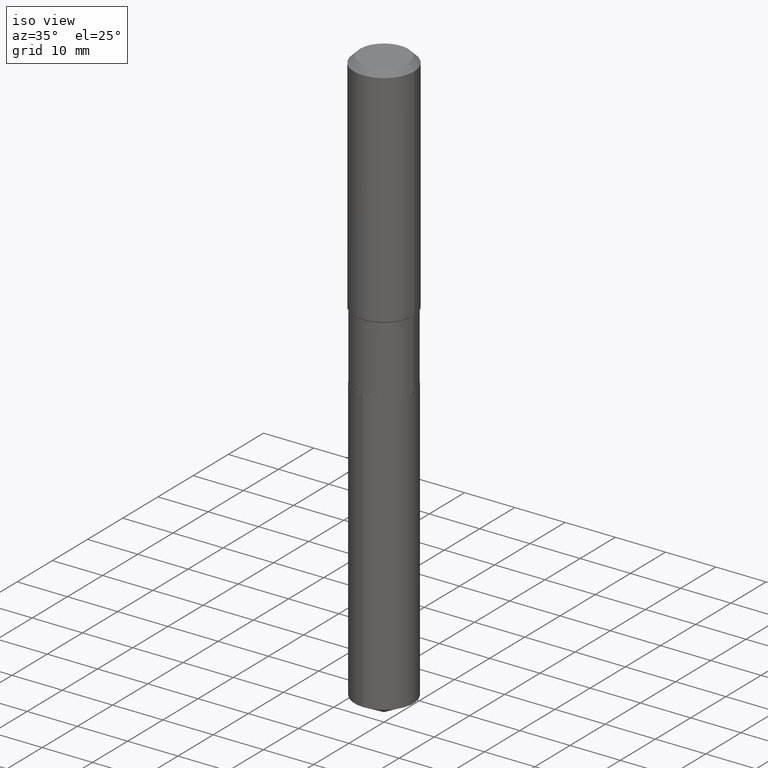
[diagram: clean part render]
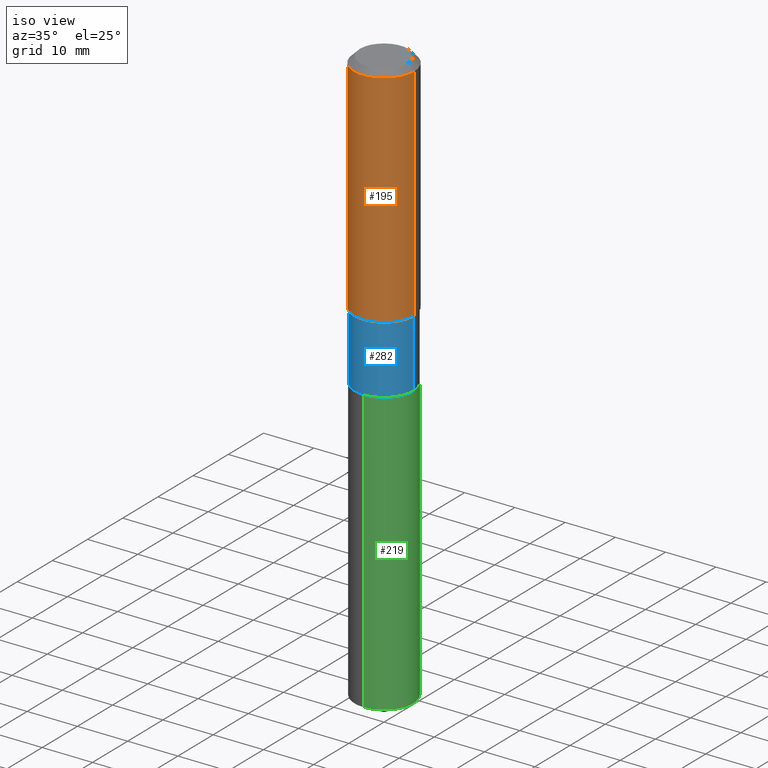
[diagram: same view with three faces highlighted in distinct colors, each labeled with its STEP entity id]
A machine part, iso view with three faces highlighted in distinct colors.
Their STEP definitions:

[orange] entity #195 — the highlighted cylindrical surface (partial cylindrical patch) has radius 5.9995 mm, axis along (-0, 0, 1).
#6 = DIRECTION ( 'NONE',  ( -2.445468806185136597E-29, 3.491481338843145583E-15, 1.000000000000000000 ) ) ;
#20 = CARTESIAN_POINT ( 'NONE',  ( -0.2361999999999999933, -1.503554831849177787E-15, -0.04724000000000028177 ) ) ;
#23 = DIRECTION ( 'NONE',  ( -2.445468806185136597E-29, 3.491481338843145583E-15, 1.000000000000000000 ) ) ;
#26 = ORIENTED_EDGE ( 'NONE', *, *, #181, .T. ) ;
#39 = ORIENTED_EDGE ( 'NONE', *, *, #411, .F. ) ;
#51 = DIRECTION ( 'NONE',  ( -2.445468806185136597E-29, 3.491481338843145583E-15, 1.000000000000000000 ) ) ;
#56 = CARTESIAN_POINT ( 'NONE',  ( 4.341685318501090243E-29, -6.198775968982119419E-15, -1.775399999999999645 ) ) ;
#76 = LINE ( 'NONE', #236, #205 ) ;
#82 = VECTOR ( 'NONE', #320, 39.37007874015748143 ) ;
#96 = VERTEX_POINT ( 'NONE', #457 ) ;
#155 = CARTESIAN_POINT ( 'NONE',  ( 0.2362000000000001043, -1.649375784469496920E-15, 1.151752954443000508E-29 ) ) ;
#181 = EDGE_CURVE ( 'NONE', #272, #349, #427, .T. ) ;
#186 = CIRCLE ( 'NONE', #460, 0.2361999999999999933 ) ;
#189 = ORIENTED_EDGE ( 'NONE', *, *, #416, .T. ) ;
#195 = ADVANCED_FACE ( 'NONE', ( #384 ), #351, .T. ) ;
#205 = VECTOR ( 'NONE', #280, 39.37007874015748143 ) ;
#213 = DIRECTION ( 'NONE',  ( 1.000000000000000000, -6.982962677686266711E-15, 0.000000000000000000 ) ) ;
#236 = CARTESIAN_POINT ( 'NONE',  ( -0.2362000000000001043, 1.678301941865357380E-15, -1.161852468318209317E-29 ) ) ;
#258 = CARTESIAN_POINT ( 'NONE',  ( -0.2362000000000002153, -4.520474027116760658E-15, -1.775399999999999645 ) ) ;
#260 = EDGE_LOOP ( 'NONE', ( #39, #26, #189, #385 ) ) ;
#272 = VERTEX_POINT ( 'NONE', #258 ) ;
#274 = LINE ( 'NONE', #155, #82 ) ;
#280 = DIRECTION ( 'NONE',  ( -2.445468806185136877E-29, 3.491481338843145188E-15, 1.000000000000000000 ) ) ;
#285 = CARTESIAN_POINT ( 'NONE',  ( 0.000000000000000000, 0.000000000000000000, 0.000000000000000000 ) ) ;
#294 = DIRECTION ( 'NONE',  ( 1.000000000000000000, -6.982962677686266711E-15, 0.000000000000000000 ) ) ;
#317 = EDGE_CURVE ( 'NONE', #405, #96, #186, .T. ) ;
#320 = DIRECTION ( 'NONE',  ( -2.445468806185136877E-29, 3.491481338843145188E-15, 1.000000000000000000 ) ) ;
#349 = VERTEX_POINT ( 'NONE', #372 ) ;
#351 = CYLINDRICAL_SURFACE ( 'NONE', #486, 0.2362000000000001043 ) ;
#372 = CARTESIAN_POINT ( 'NONE',  ( 0.2362000000000002153, -7.848151753451617522E-15, -1.775399999999999645 ) ) ;
#384 = FACE_OUTER_BOUND ( 'NONE', #260, .T. ) ;
#385 = ORIENTED_EDGE ( 'NONE', *, *, #317, .F. ) ;
#397 = CARTESIAN_POINT ( 'NONE',  ( 1.155239464041865506E-30, -1.649375784469511859E-16, -0.04724000000000028177 ) ) ;
#401 = AXIS2_PLACEMENT_3D ( 'NONE', #56, #51, #213 ) ;
#405 = VERTEX_POINT ( 'NONE', #20 ) ;
#411 = EDGE_CURVE ( 'NONE', #272, #405, #76, .T. ) ;
#416 = EDGE_CURVE ( 'NONE', #349, #96, #274, .T. ) ;
#423 = DIRECTION ( 'NONE',  ( 1.000000000000000000, -6.982962677686266711E-15, 4.876176775795935793E-29 ) ) ;
#427 = CIRCLE ( 'NONE', #401, 0.2362000000000002153 ) ;
#457 = CARTESIAN_POINT ( 'NONE',  ( 0.2361999999999999933, -1.814313362916447440E-15, -0.04724000000000028177 ) ) ;
#460 = AXIS2_PLACEMENT_3D ( 'NONE', #397, #23, #294 ) ;
#486 = AXIS2_PLACEMENT_3D ( 'NONE', #285, #6, #423 ) ;

[blue] entity #282 — the highlighted cylindrical surface (edge-blend (fillet) strip) has radius 5.8496 mm, axis along (-0, 0, 1).
#37 = CARTESIAN_POINT ( 'NONE',  ( 5.650255676690757174E-29, -8.067067633397085902E-15, -2.310499999999999776 ) ) ;
#57 = CYLINDRICAL_SURFACE ( 'NONE', #192, 0.2302999999999999770 ) ;
#60 = CARTESIAN_POINT ( 'NONE',  ( 0.2302999999999999770, -1.608176304671147069E-15, 1.122983511465803858E-29 ) ) ;
#61 = ORIENTED_EDGE ( 'NONE', *, *, #464, .T. ) ;
#83 = VERTEX_POINT ( 'NONE', #462 ) ;
#91 = EDGE_CURVE ( 'NONE', #222, #83, #247, .T. ) ;
#93 = AXIS2_PLACEMENT_3D ( 'NONE', #338, #255, #305 ) ;
#106 = CARTESIAN_POINT ( 'NONE',  ( 0.000000000000000000, 0.000000000000000000, 0.000000000000000000 ) ) ;
#127 = EDGE_LOOP ( 'NONE', ( #417, #61, #227, #135 ) ) ;
#135 = ORIENTED_EDGE ( 'NONE', *, *, #379, .F. ) ;
#137 = VECTOR ( 'NONE', #354, 39.37007874015748143 ) ;
#142 = DIRECTION ( 'NONE',  ( -2.445468806185136597E-29, 3.491481338843145583E-15, 1.000000000000000000 ) ) ;
#182 = DIRECTION ( 'NONE',  ( -2.445468806185136877E-29, 3.491481338843145188E-15, 1.000000000000000000 ) ) ;
#190 = DIRECTION ( 'NONE',  ( 1.000000000000000000, -6.982962677686269866E-15, 0.000000000000000000 ) ) ;
#192 = AXIS2_PLACEMENT_3D ( 'NONE', #106, #142, #265 ) ;
#222 = VERTEX_POINT ( 'NONE', #332 ) ;
#227 = ORIENTED_EDGE ( 'NONE', *, *, #276, .T. ) ;
#247 = LINE ( 'NONE', #431, #137 ) ;
#255 = DIRECTION ( 'NONE',  ( -2.445468806185136597E-29, 3.491481338843145583E-15, 1.000000000000000000 ) ) ;
#265 = DIRECTION ( 'NONE',  ( 1.000000000000000000, -6.982962677686266711E-15, 4.876176775795935793E-29 ) ) ;
#276 = EDGE_CURVE ( 'NONE', #410, #403, #396, .T. ) ;
#282 = ADVANCED_FACE ( 'NONE', ( #473 ), #57, .T. ) ;
#299 = AXIS2_PLACEMENT_3D ( 'NONE', #37, #342, #190 ) ;
#305 = DIRECTION ( 'NONE',  ( 1.000000000000000000, -6.982962677686268288E-15, 0.000000000000000000 ) ) ;
#332 = CARTESIAN_POINT ( 'NONE',  ( -0.2303000000000000047, -5.506841750683680348E-15, -2.310499999999999776 ) ) ;
#338 = CARTESIAN_POINT ( 'NONE',  ( 4.356113584457583395E-29, -6.219375708881294739E-15, -1.781299999999999883 ) ) ;
#342 = DIRECTION ( 'NONE',  ( -2.445468806185136597E-29, 3.491481338843145583E-15, 1.000000000000000000 ) ) ;
#354 = DIRECTION ( 'NONE',  ( -2.445468806185136877E-29, 3.491481338843145188E-15, 1.000000000000000000 ) ) ;
#363 = CARTESIAN_POINT ( 'NONE',  ( 0.2302999999999999214, -7.827552013552441413E-15, -1.781299999999999883 ) ) ;
#364 = CIRCLE ( 'NONE', #299, 0.2303000000000000047 ) ;
#366 = CARTESIAN_POINT ( 'NONE',  ( 0.2303000000000000047, -9.675243938068234943E-15, -2.310499999999999776 ) ) ;
#379 = EDGE_CURVE ( 'NONE', #83, #403, #479, .T. ) ;
#394 = VECTOR ( 'NONE', #182, 39.37007874015748143 ) ;
#396 = LINE ( 'NONE', #60, #394 ) ;
#403 = VERTEX_POINT ( 'NONE', #363 ) ;
#410 = VERTEX_POINT ( 'NONE', #366 ) ;
#417 = ORIENTED_EDGE ( 'NONE', *, *, #91, .F. ) ;
#431 = CARTESIAN_POINT ( 'NONE',  ( -0.2302999999999999770, 1.636379920455510564E-15, -1.132830751285704610E-29 ) ) ;
#462 = CARTESIAN_POINT ( 'NONE',  ( -0.2302999999999999214, -5.506841750683680348E-15, -1.781299999999999883 ) ) ;
#464 = EDGE_CURVE ( 'NONE', #222, #410, #364, .T. ) ;
#473 = FACE_OUTER_BOUND ( 'NONE', #127, .T. ) ;
#479 = CIRCLE ( 'NONE', #93, 0.2302999999999999214 ) ;

[green] entity #219 — the highlighted cylindrical surface (edge-blend (fillet) strip) has radius 5.8496 mm, axis along (-0, 0, 1).
#15 = CARTESIAN_POINT ( 'NONE',  ( 5.651478411093848855E-29, -8.068813374066508195E-15, -2.310999999999999499 ) ) ;
#31 = EDGE_CURVE ( 'NONE', #141, #373, #108, .T. ) ;
#47 = CARTESIAN_POINT ( 'NONE',  ( 1.636379920455566968E-15, 0.2302999999999919278, -2.311000000000000387 ) ) ;
#63 = EDGE_CURVE ( 'NONE', #373, #220, #452, .T. ) ;
#81 = VECTOR ( 'NONE', #358, 39.37007874015748143 ) ;
#104 = CARTESIAN_POINT ( 'NONE',  ( 1.636379920455621202E-15, 0.2302999999999842118, -4.523247317888362318 ) ) ;
#108 = LINE ( 'NONE', #114, #298 ) ;
#114 = CARTESIAN_POINT ( 'NONE',  ( -1.608176304671090468E-15, -0.2303000000000080538, -2.310999999999998611 ) ) ;
#121 = ORIENTED_EDGE ( 'NONE', *, *, #31, .F. ) ;
#140 = DIRECTION ( 'NONE',  ( -6.982962677686265922E-15, -1.000000000000000000, 3.558638289619100968E-15 ) ) ;
#141 = VERTEX_POINT ( 'NONE', #243 ) ;
#144 = EDGE_CURVE ( 'NONE', #264, #220, #322, .T. ) ;
#174 = DIRECTION ( 'NONE',  ( -2.445449566755685960E-29, 3.491508890801159259E-15, 1.000000000000000000 ) ) ;
#179 = CIRCLE ( 'NONE', #341, 0.2303000000000000047 ) ;
#188 = CARTESIAN_POINT ( 'NONE',  ( -1.608176304671090468E-15, -0.2303000000000080538, -2.310999999999998611 ) ) ;
#218 = DIRECTION ( 'NONE',  ( -6.982962677686265922E-15, -1.000000000000000000, 2.372425526412734110E-15 ) ) ;
#219 = ADVANCED_FACE ( 'NONE', ( #361 ), #326, .T. ) ;
#220 = VERTEX_POINT ( 'NONE', #292 ) ;
#231 = DIRECTION ( 'NONE',  ( -6.982962677686265922E-15, -1.000000000000000000, 3.558638289619100968E-15 ) ) ;
#233 = CARTESIAN_POINT ( 'NONE',  ( 5.651478411093848855E-29, -8.068813374066508195E-15, -2.310999999999999499 ) ) ;
#243 = CARTESIAN_POINT ( 'NONE',  ( -1.608176304671036628E-15, -0.2303000000000157976, -4.523247317888361430 ) ) ;
#264 = VERTEX_POINT ( 'NONE', #104 ) ;
#291 = EDGE_CURVE ( 'NONE', #141, #264, #179, .T. ) ;
#292 = CARTESIAN_POINT ( 'NONE',  ( 1.636379920455621399E-15, 0.2302999999999919001, -2.311000000000000387 ) ) ;
#298 = VECTOR ( 'NONE', #408, 39.37007874015748143 ) ;
#312 = AXIS2_PLACEMENT_3D ( 'NONE', #15, #469, #140 ) ;
#315 = ORIENTED_EDGE ( 'NONE', *, *, #291, .T. ) ;
#322 = LINE ( 'NONE', #47, #81 ) ;
#325 = ORIENTED_EDGE ( 'NONE', *, *, #63, .F. ) ;
#326 = CYLINDRICAL_SURFACE ( 'NONE', #312, 0.2303000000000000047 ) ;
#341 = AXIS2_PLACEMENT_3D ( 'NONE', #482, #404, #218 ) ;
#358 = DIRECTION ( 'NONE',  ( -2.445449566755685960E-29, 3.491508890801159654E-15, 1.000000000000000000 ) ) ;
#361 = FACE_OUTER_BOUND ( 'NONE', #375, .T. ) ;
#373 = VERTEX_POINT ( 'NONE', #188 ) ;
#375 = EDGE_LOOP ( 'NONE', ( #315, #451, #325, #121 ) ) ;
#382 = AXIS2_PLACEMENT_3D ( 'NONE', #233, #174, #231 ) ;
#404 = DIRECTION ( 'NONE',  ( -2.445449566755685960E-29, 3.491508890801159259E-15, 1.000000000000000000 ) ) ;
#408 = DIRECTION ( 'NONE',  ( -2.445449566755685960E-29, 3.491508890801159654E-15, 1.000000000000000000 ) ) ;
#451 = ORIENTED_EDGE ( 'NONE', *, *, #144, .T. ) ;
#452 = CIRCLE ( 'NONE', #382, 0.2303000000000000047 ) ;
#469 = DIRECTION ( 'NONE',  ( -2.445449566755685960E-29, 3.491508890801159259E-15, 1.000000000000000000 ) ) ;
#482 = CARTESIAN_POINT ( 'NONE',  ( 1.106141765618037244E-28, -1.579289455312474362E-14, -4.523247317888362318 ) ) ;